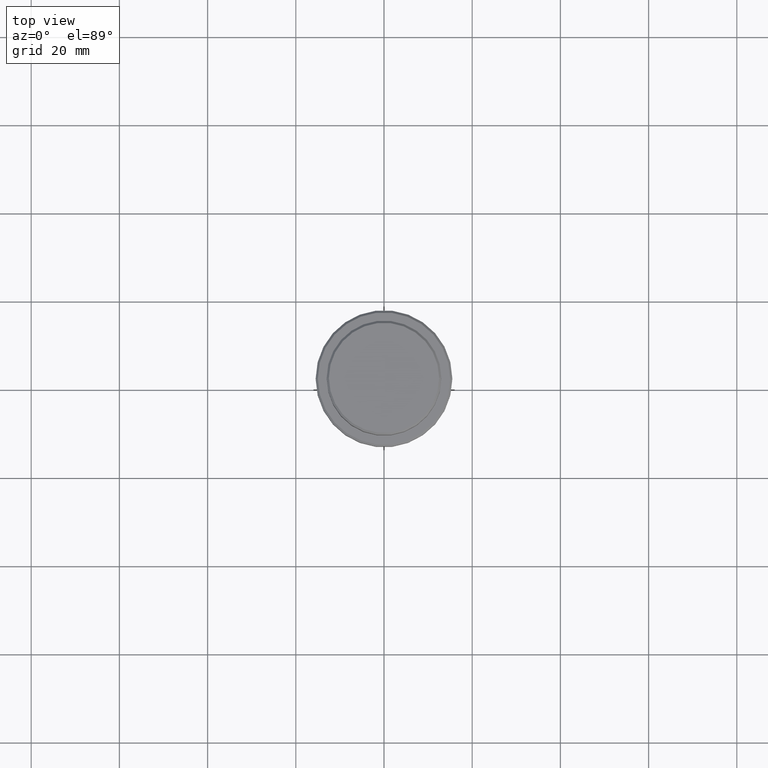
[diagram: clean part render]
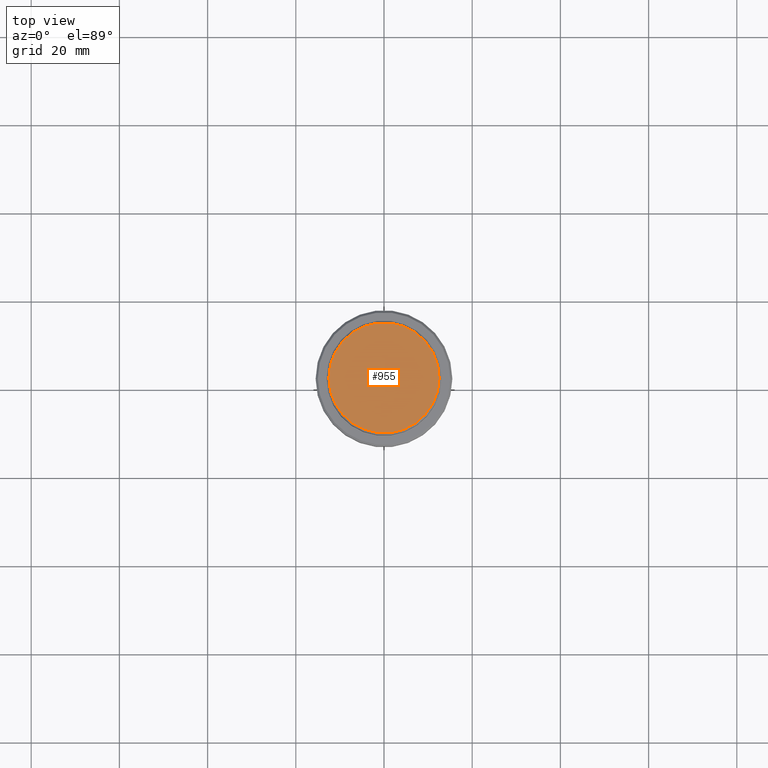
[diagram: same view with one face highlighted and labeled with its STEP entity id]
A machine part, top view. The second image highlights one B-rep face of the part: STEP entity #955.
In plain terms, the highlighted planar face has unit normal (0, -0, 1).
Its self-contained STEP definition (entity closure, byte-faithful):
#96 = EDGE_CURVE ( 'NONE', #786, #1131, #1274, .T. ) ;
#146 = DIRECTION ( 'NONE',  ( 0.000000000000000000, -0.000000000000000000, 1.000000000000000000 ) ) ;
#159 = AXIS2_PLACEMENT_3D ( 'NONE', #1025, #1140, #715 ) ;
#295 = CARTESIAN_POINT ( 'NONE',  ( -12.50000000000004086, 0.000000000000000000, 0.000000000000000000 ) ) ;
#343 = CARTESIAN_POINT ( 'NONE',  ( 0.000000000000000000, 0.000000000000000000, 0.000000000000000000 ) ) ;
#669 = CARTESIAN_POINT ( 'NONE',  ( 0.000000000000000000, 0.000000000000000000, 0.000000000000000000 ) ) ;
#676 = PLANE ( 'NONE',  #1287 ) ;
#715 = DIRECTION ( 'NONE',  ( 1.000000000000000000, 0.000000000000000000, 0.000000000000000000 ) ) ;
#773 = AXIS2_PLACEMENT_3D ( 'NONE', #669, #997, #808 ) ;
#786 = VERTEX_POINT ( 'NONE', #295 ) ;
#807 = CIRCLE ( 'NONE', #159, 12.50000000000004086 ) ;
#808 = DIRECTION ( 'NONE',  ( 1.000000000000000000, 0.000000000000000000, 0.000000000000000000 ) ) ;
#812 = ORIENTED_EDGE ( 'NONE', *, *, #96, .T. ) ;
#813 = CARTESIAN_POINT ( 'NONE',  ( 12.50000000000004086, 1.561424668912877675E-15, 0.000000000000000000 ) ) ;
#911 = DIRECTION ( 'NONE',  ( 1.000000000000000000, 0.000000000000000000, 0.000000000000000000 ) ) ;
#955 = ADVANCED_FACE ( 'NONE', ( #1326 ), #676, .T. ) ;
#987 = EDGE_LOOP ( 'NONE', ( #812, #1286 ) ) ;
#997 = DIRECTION ( 'NONE',  ( -0.000000000000000000, -0.000000000000000000, 1.000000000000000000 ) ) ;
#1025 = CARTESIAN_POINT ( 'NONE',  ( 0.000000000000000000, 0.000000000000000000, 0.000000000000000000 ) ) ;
#1131 = VERTEX_POINT ( 'NONE', #813 ) ;
#1140 = DIRECTION ( 'NONE',  ( -0.000000000000000000, -0.000000000000000000, 1.000000000000000000 ) ) ;
#1205 = EDGE_CURVE ( 'NONE', #1131, #786, #807, .T. ) ;
#1274 = CIRCLE ( 'NONE', #773, 12.50000000000004086 ) ;
#1286 = ORIENTED_EDGE ( 'NONE', *, *, #1205, .T. ) ;
#1287 = AXIS2_PLACEMENT_3D ( 'NONE', #343, #146, #911 ) ;
#1326 = FACE_OUTER_BOUND ( 'NONE', #987, .T. ) ;